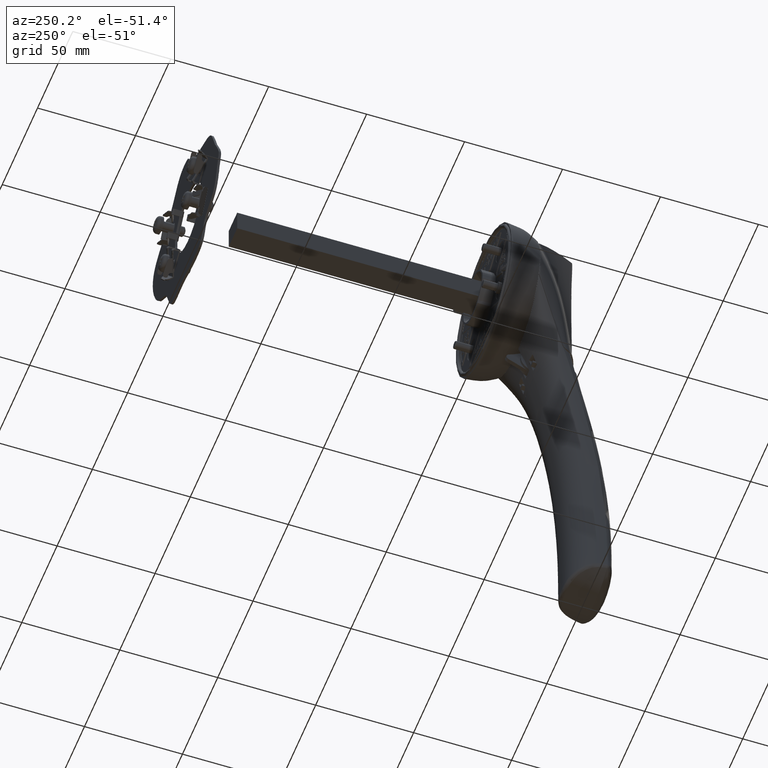
[diagram: clean part render]
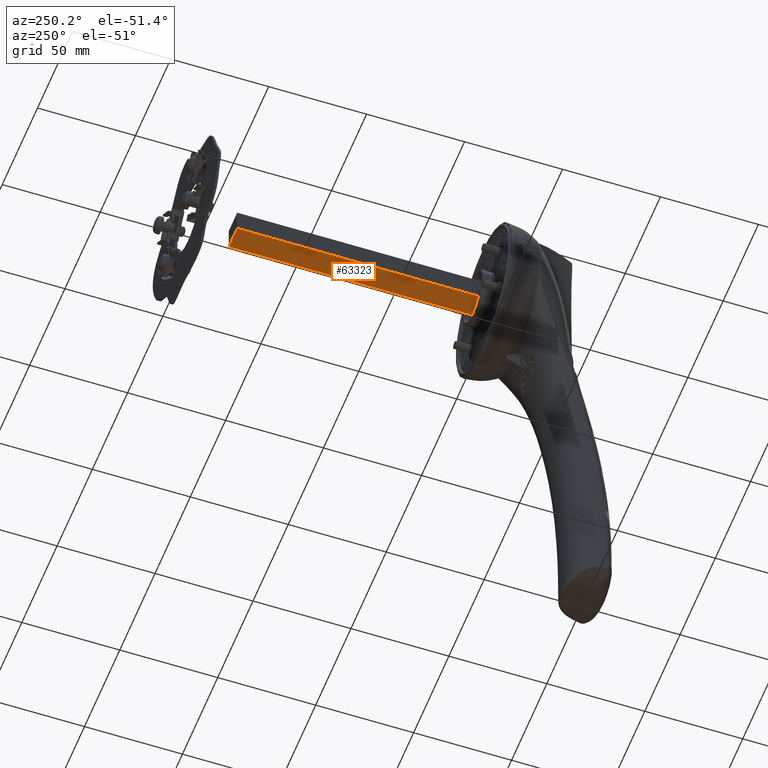
[diagram: same view with one face highlighted and labeled with its STEP entity id]
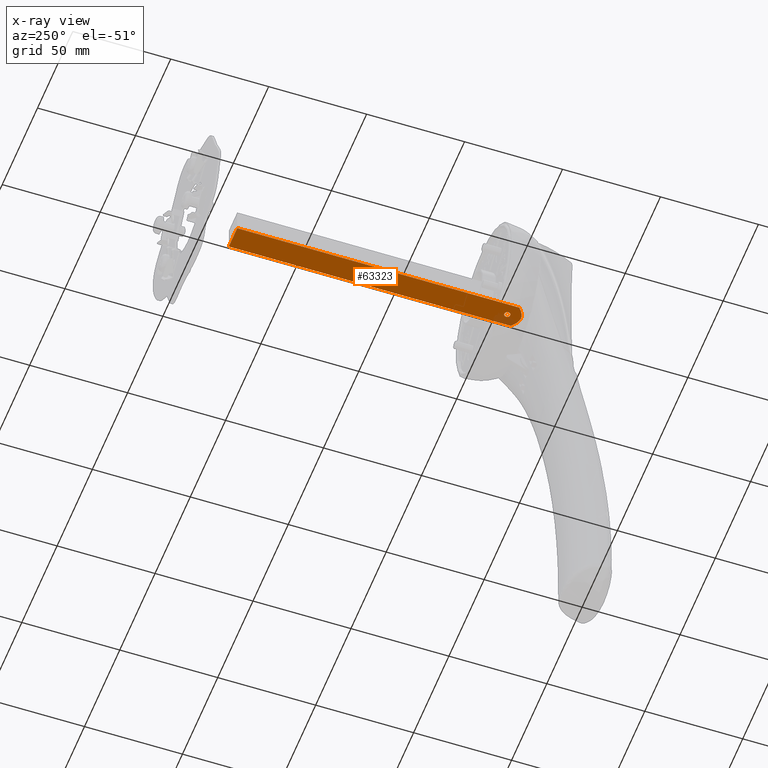
[diagram: x-ray of the same camera — body ghosted, the highlighted face saturated]
A machine part, auxiliary view. The second image highlights one B-rep face of the part: STEP entity #63323.
The next image is the same camera in x-ray: the body ghosted, the highlighted face saturated — about 3% of this face is hidden behind the body in this view.
In plain terms, the highlighted planar face has unit normal (0, 0, -1).
Its self-contained STEP definition (entity closure, byte-faithful):
#63042=CARTESIAN_POINT('',(0.E0,-1.18E1,-6.000000000001E0));
#63043=DIRECTION('',(0.E0,0.E0,1.E0));
#63044=DIRECTION('',(-1.E0,0.E0,0.E0));
#63045=AXIS2_PLACEMENT_3D('',#63042,#63043,#63044);
#63047=CARTESIAN_POINT('',(0.E0,-1.18E1,-6.000000000001E0));
#63048=DIRECTION('',(0.E0,0.E0,1.E0));
#63049=DIRECTION('',(1.E0,0.E0,0.E0));
#63050=AXIS2_PLACEMENT_3D('',#63047,#63048,#63049);
#63052=DIRECTION('',(0.E0,1.E0,0.E0));
#63053=VECTOR('',#63052,1.440587730122E2);
#63054=CARTESIAN_POINT('',(-6.E0,-1.585877301216E1,-6.000000000001E0));
#63055=LINE('',#63054,#63053);
#63056=CARTESIAN_POINT('',(-1.187300747887E-12,-1.882061591767E1,
-6.000000045690E0));
#63057=CARTESIAN_POINT('',(-3.518720601789E-1,-1.882061591767E1,
-6.000000045690E0));
#63058=CARTESIAN_POINT('',(-1.081409272043E0,-1.874231095394E1,
-5.999999978796E0));
#63059=CARTESIAN_POINT('',(-2.274561127021E0,-1.835969863605E1,
-6.000000005684E0));
#63060=CARTESIAN_POINT('',(-3.502392655291E0,-1.772566920145E1,
-5.999999998470E0));
#63061=CARTESIAN_POINT('',(-4.726857440184E0,-1.689646100534E1,
-6.000000000438E0));
#63062=CARTESIAN_POINT('',(-5.569499806080E0,-1.622155425424E1,
-6.000000000001E0));
#63063=CARTESIAN_POINT('',(-6.E0,-1.585877301216E1,-6.000000000001E0));
#63065=CARTESIAN_POINT('',(6.E0,-1.585877301216E1,-6.000000000001E0));
#63066=CARTESIAN_POINT('',(5.569803642541E0,-1.622129821215E1,
-6.000000000001E0));
#63067=CARTESIAN_POINT('',(4.727327244716E0,-1.689569599984E1,
-6.000000000438E0));
#63068=CARTESIAN_POINT('',(3.502985302437E0,-1.772499776907E1,
-5.999999998470E0));
#63069=CARTESIAN_POINT('',(2.274401180378E0,-1.836076881679E1,
-6.000000005684E0));
#63070=CARTESIAN_POINT('',(1.084232588098E0,-1.874250067892E1,
-5.999999978796E0));
#63071=CARTESIAN_POINT('',(3.530763620420E-1,-1.882061591767E1,
-6.000000045690E0));
#63072=CARTESIAN_POINT('',(-1.187300747887E-12,-1.882061591767E1,
-6.000000045690E0));
#63136=DIRECTION('',(-1.E0,0.E0,0.E0));
#63137=VECTOR('',#63136,1.2E1);
#63138=CARTESIAN_POINT('',(6.E0,1.282E2,-6.000000000001E0));
#63139=LINE('',#63138,#63137);
#63144=DIRECTION('',(0.E0,1.E0,0.E0));
#63145=VECTOR('',#63144,1.440587730122E2);
#63146=CARTESIAN_POINT('',(6.E0,-1.585877301216E1,-6.000000000001E0));
#63147=LINE('',#63146,#63145);
#63252=CARTESIAN_POINT('',(-6.E0,-1.585877301216E1,-6.000000000001E0));
#63253=CARTESIAN_POINT('',(-6.E0,1.282E2,-6.000000000001E0));
#63254=VERTEX_POINT('',#63252);
#63255=VERTEX_POINT('',#63253);
#63256=CARTESIAN_POINT('',(6.E0,1.282E2,-6.000000000001E0));
#63257=VERTEX_POINT('',#63256);
#63258=CARTESIAN_POINT('',(6.E0,-1.585877301216E1,-6.000000000001E0));
#63259=VERTEX_POINT('',#63258);
#63273=CARTESIAN_POINT('',(-1.187300747887E-12,-1.882061591767E1,
-6.000000045690E0));
#63275=VERTEX_POINT('',#63273);
#63284=CARTESIAN_POINT('',(1.5E0,-1.18E1,-6.000000000001E0));
#63286=VERTEX_POINT('',#63284);
#63288=CARTESIAN_POINT('',(-1.5E0,-1.18E1,-6.000000000001E0));
#63290=VERTEX_POINT('',#63288);
#63300=CARTESIAN_POINT('',(5.E0,-2.58E1,-6.000000000001E0));
#63301=DIRECTION('',(0.E0,0.E0,-1.E0));
#63302=DIRECTION('',(0.E0,-1.E0,0.E0));
#63303=AXIS2_PLACEMENT_3D('',#63300,#63301,#63302);
#63304=PLANE('',#63303);
#63306=ORIENTED_EDGE('',*,*,#63305,.F.);
#63308=ORIENTED_EDGE('',*,*,#63307,.F.);
#63310=ORIENTED_EDGE('',*,*,#63309,.F.);
#63312=ORIENTED_EDGE('',*,*,#63311,.T.);
#63314=ORIENTED_EDGE('',*,*,#63313,.T.);
#63315=EDGE_LOOP('',(#63306,#63308,#63310,#63312,#63314));
#63316=FACE_OUTER_BOUND('',#63315,.F.);
#63318=ORIENTED_EDGE('',*,*,#63317,.F.);
#63320=ORIENTED_EDGE('',*,*,#63319,.F.);
#63321=EDGE_LOOP('',(#63318,#63320));
#63322=FACE_BOUND('',#63321,.F.);
#63323=ADVANCED_FACE('',(#63316,#63322),#63304,.T.);
#63046=CIRCLE('',#63045,1.5E0);
#63051=CIRCLE('',#63050,1.5E0);
#63064=B_SPLINE_CURVE_WITH_KNOTS('',3,(#63056,#63057,#63058,#63059,#63060,
#63061,#63062,#63063),.UNSPECIFIED.,.F.,.F.,(4,1,1,1,1,4),(0.E0,2.E-1,4.E-1,
6.E-1,8.E-1,1.E0),.UNSPECIFIED.);
#63073=B_SPLINE_CURVE_WITH_KNOTS('',3,(#63065,#63066,#63067,#63068,#63069,
#63070,#63071,#63072),.UNSPECIFIED.,.F.,.F.,(4,1,1,1,1,4),(0.E0,2.E-1,4.E-1,
6.E-1,8.E-1,1.E0),.UNSPECIFIED.);
#63305=EDGE_CURVE('',#63254,#63255,#63055,.T.);
#63307=EDGE_CURVE('',#63275,#63254,#63064,.T.);
#63309=EDGE_CURVE('',#63259,#63275,#63073,.T.);
#63311=EDGE_CURVE('',#63259,#63257,#63147,.T.);
#63313=EDGE_CURVE('',#63257,#63255,#63139,.T.);
#63317=EDGE_CURVE('',#63290,#63286,#63046,.T.);
#63319=EDGE_CURVE('',#63286,#63290,#63051,.T.);